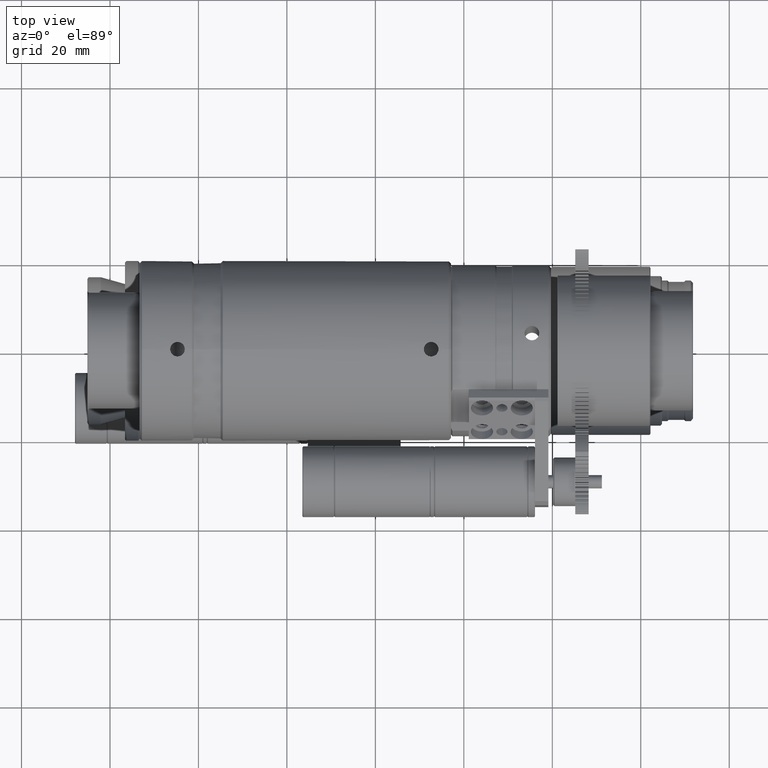
[diagram: clean part render]
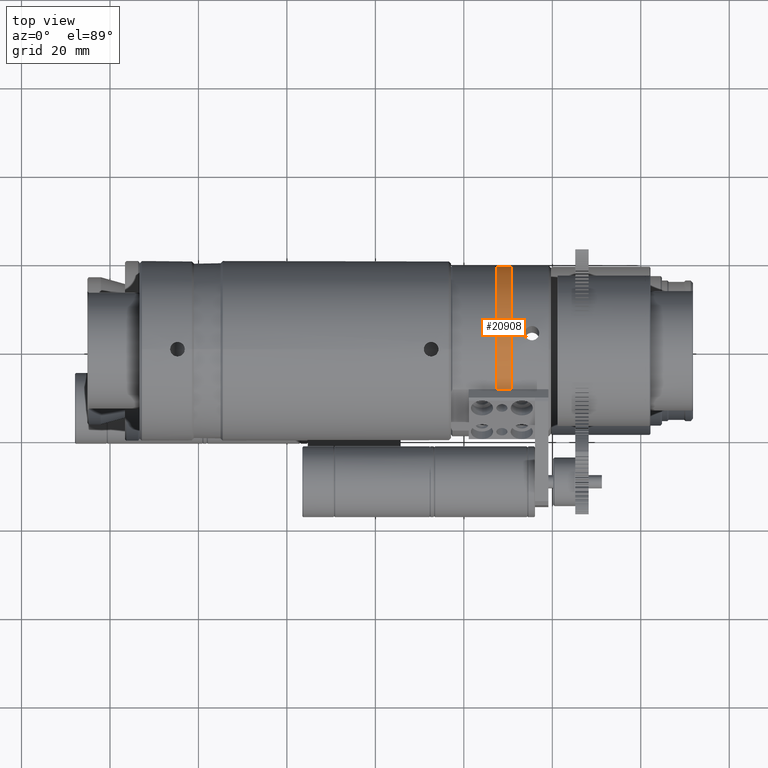
[diagram: same view with one face highlighted and labeled with its STEP entity id]
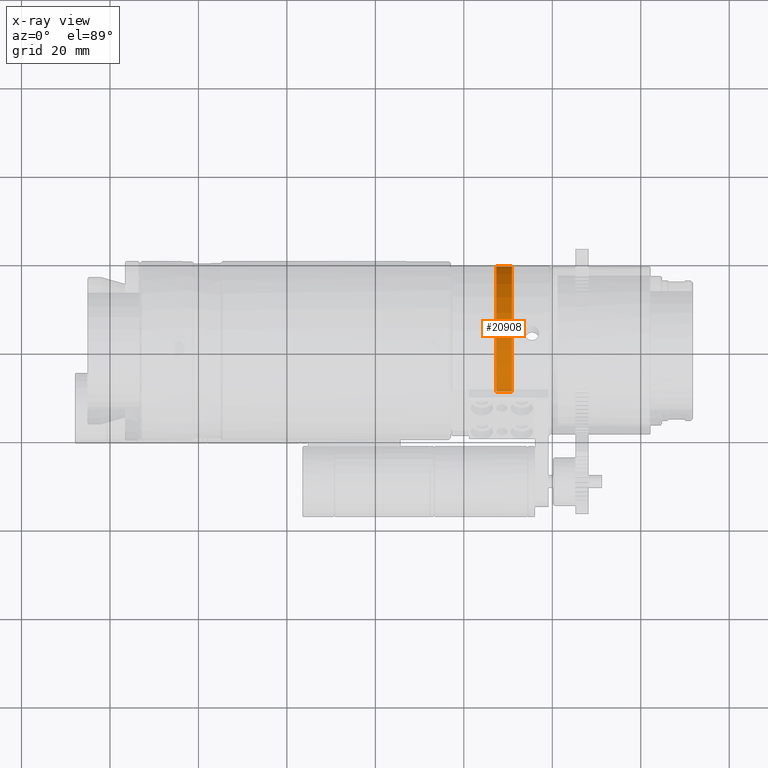
[diagram: x-ray of the same camera — body ghosted, the highlighted face saturated]
A machine part, top view. The second image highlights one B-rep face of the part: STEP entity #20908.
The next image is the same camera in x-ray: the body ghosted, the highlighted face saturated — about 0% of this face is hidden behind the body in this view.
In plain terms, the highlighted cylindrical surface (partial cylindrical patch) has radius 19.05 mm, axis along (-1, -0, 0).
Its self-contained STEP definition (entity closure, byte-faithful):
#280 = CIRCLE ( 'NONE', #2340, 19.05000000000001100 ) ;
#552 = VERTEX_POINT ( 'NONE', #11830 ) ;
#1724 = VECTOR ( 'NONE', #8879, 1000.000000000000000 ) ;
#2093 = ORIENTED_EDGE ( 'NONE', *, *, #27313, .T. ) ;
#2186 = VERTEX_POINT ( 'NONE', #26813 ) ;
#2340 = AXIS2_PLACEMENT_3D ( 'NONE', #14101, #38188, #17635 ) ;
#2372 = AXIS2_PLACEMENT_3D ( 'NONE', #14004, #13964, #13900 ) ;
#3601 = EDGE_CURVE ( 'NONE', #30716, #11324, #36332, .T. ) ;
#3849 = CARTESIAN_POINT ( 'NONE',  ( 87.34999999996169600, 19.05000000000000800, 1.187416982753618000E-015 ) ) ;
#4170 = ORIENTED_EDGE ( 'NONE', *, *, #12641, .T. ) ;
#4616 = LINE ( 'NONE', #8785, #1724 ) ;
#5207 = ORIENTED_EDGE ( 'NONE', *, *, #15525, .T. ) ;
#5313 = VERTEX_POINT ( 'NONE', #42630 ) ;
#8772 = CIRCLE ( 'NONE', #34844, 19.05000000000000800 ) ;
#8785 = CARTESIAN_POINT ( 'NONE',  ( 73.10477382051560400, -9.492809684866784900, 16.51632720331308200 ) ) ;
#8879 = DIRECTION ( 'NONE',  ( 1.000000000000000000, 9.169157752668964600E-017, -7.970627231339771200E-017 ) ) ;
#8897 = EDGE_LOOP ( 'NONE', ( #2093, #4170, #5207, #22903, #11594, #15399 ) ) ;
#9308 = EDGE_CURVE ( 'NONE', #5313, #2186, #4616, .T. ) ;
#10770 = VERTEX_POINT ( 'NONE', #26850 ) ;
#11324 = VERTEX_POINT ( 'NONE', #3849 ) ;
#11594 = ORIENTED_EDGE ( 'NONE', *, *, #25823, .F. ) ;
#11830 = CARTESIAN_POINT ( 'NONE',  ( 90.84999999996360000, 4.950345451330262900E-015, 19.05000000000001100 ) ) ;
#12489 = CARTESIAN_POINT ( 'NONE',  ( 72.27460002151941900, 2.311115933264683000E-030, 1.155557966632341500E-030 ) ) ;
#12641 = EDGE_CURVE ( 'NONE', #552, #10770, #24861, .T. ) ;
#13900 = DIRECTION ( 'NONE',  ( 0.0000000000000000000, -1.000000000000000000, 0.0000000000000000000 ) ) ;
#13964 = DIRECTION ( 'NONE',  ( -1.000000000000000000, -1.017949417668863000E-016, 6.808368128482870600E-017 ) ) ;
#14004 = CARTESIAN_POINT ( 'NONE',  ( 90.84999999996360000, 1.890881759102348600E-015, -1.264681611870606500E-015 ) ) ;
#14101 = CARTESIAN_POINT ( 'NONE',  ( 90.84999999996360000, 1.890881759102348600E-015, -1.264681611870606500E-015 ) ) ;
#15399 = ORIENTED_EDGE ( 'NONE', *, *, #9308, .T. ) ;
#15525 = EDGE_CURVE ( 'NONE', #10770, #11324, #24664, .T. ) ;
#16248 = DIRECTION ( 'NONE',  ( -1.000000000000000000, -1.017949417668863000E-016, 6.808368128482870600E-017 ) ) ;
#17635 = DIRECTION ( 'NONE',  ( 0.0000000000000000000, -1.000000000000000000, 0.0000000000000000000 ) ) ;
#20908 = ADVANCED_FACE ( 'NONE', ( #33529 ), #33275, .T. ) ;
#22903 = ORIENTED_EDGE ( 'NONE', *, *, #3601, .F. ) ;
#24332 = VECTOR ( 'NONE', #37785, 1000.000000000000000 ) ;
#24664 = LINE ( 'NONE', #37774, #24332 ) ;
#24861 = CIRCLE ( 'NONE', #2372, 19.05000000000001100 ) ;
#25823 = EDGE_CURVE ( 'NONE', #5313, #30716, #8772, .T. ) ;
#26813 = CARTESIAN_POINT ( 'NONE',  ( 90.84999999996360000, -9.492809684866777800, 16.51632720331307900 ) ) ;
#26850 = CARTESIAN_POINT ( 'NONE',  ( 90.84999999996360000, 19.05000000000001500, 1.187416982753618600E-015 ) ) ;
#27313 = EDGE_CURVE ( 'NONE', #2186, #552, #280, .T. ) ;
#29632 = AXIS2_PLACEMENT_3D ( 'NONE', #44084, #44081, #44033 ) ;
#29939 = CARTESIAN_POINT ( 'NONE',  ( 87.34999999996169600, 1.734723475976805700E-015, 19.05000000000000800 ) ) ;
#30716 = VERTEX_POINT ( 'NONE', #29939 ) ;
#32217 = AXIS2_PLACEMENT_3D ( 'NONE', #12489, #40118, #39967 ) ;
#33275 = CYLINDRICAL_SURFACE ( 'NONE', #32217, 19.05000000000001100 ) ;
#33529 = FACE_OUTER_BOUND ( 'NONE', #8897, .T. ) ;
#34844 = AXIS2_PLACEMENT_3D ( 'NONE', #36873, #16248, #40304 ) ;
#36332 = CIRCLE ( 'NONE', #29632, 19.05000000000000800 ) ;
#36873 = CARTESIAN_POINT ( 'NONE',  ( 87.34999999996169600, 1.534599462918053300E-015, -1.026388727373576300E-015 ) ) ;
#37774 = CARTESIAN_POINT ( 'NONE',  ( 72.27460002151941900, 19.05000000000001100, 2.332952152375710400E-015 ) ) ;
#37785 = DIRECTION ( 'NONE',  ( -1.000000000000000000, -1.017949417668863000E-016, 6.808368128482870600E-017 ) ) ;
#38188 = DIRECTION ( 'NONE',  ( -1.000000000000000000, -1.017949417668863000E-016, 6.808368128482870600E-017 ) ) ;
#39967 = DIRECTION ( 'NONE',  ( 0.0000000000000000000, -1.000000000000000000, 0.0000000000000000000 ) ) ;
#40118 = DIRECTION ( 'NONE',  ( -1.000000000000000000, -1.017949417668863000E-016, 6.808368128482870600E-017 ) ) ;
#40304 = DIRECTION ( 'NONE',  ( 0.0000000000000000000, -0.6560590289904979500, -0.7547095802227801200 ) ) ;
#42630 = CARTESIAN_POINT ( 'NONE',  ( 87.34999999996171000, -9.492809684866783100, 16.51632720331307500 ) ) ;
#44033 = DIRECTION ( 'NONE',  ( 0.0000000000000000000, -0.6560590289904979500, -0.7547095802227801200 ) ) ;
#44081 = DIRECTION ( 'NONE',  ( -1.000000000000000000, -1.017949417668863000E-016, 6.808368128482870600E-017 ) ) ;
#44084 = CARTESIAN_POINT ( 'NONE',  ( 87.34999999996169600, 1.534599462918053300E-015, -1.026388727373576300E-015 ) ) ;